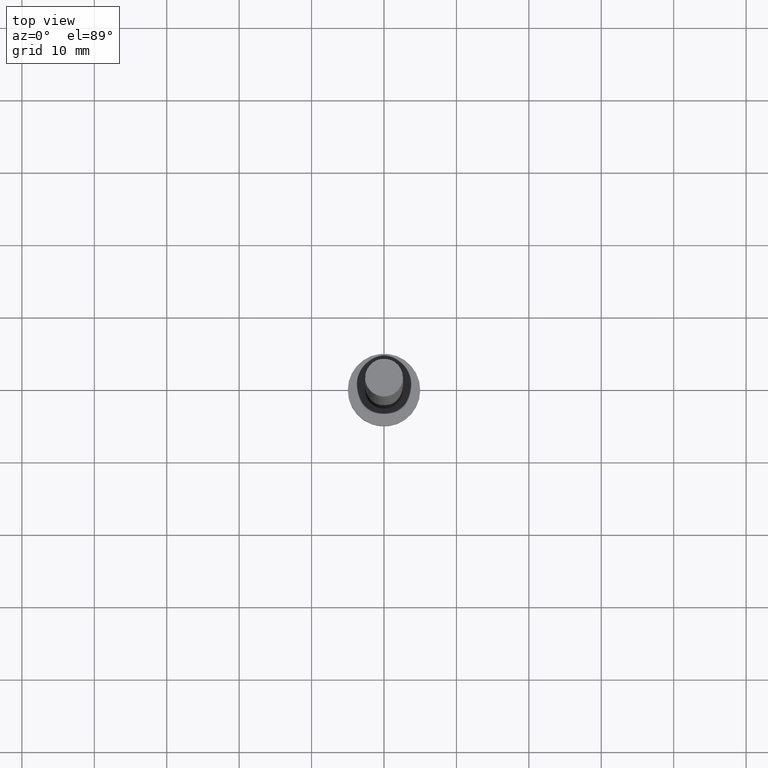
[diagram: clean part render]
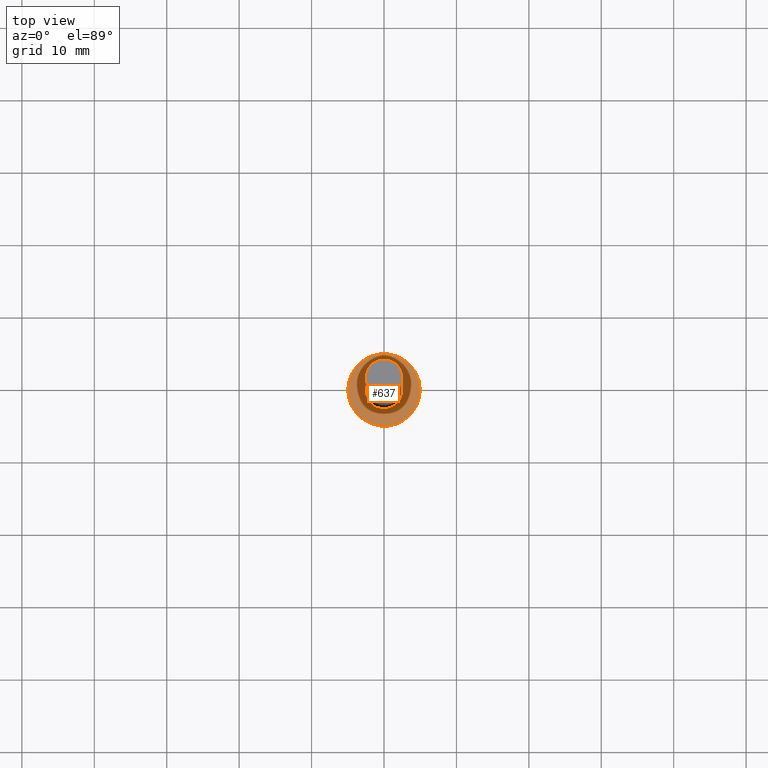
[diagram: same view with one face highlighted and labeled with its STEP entity id]
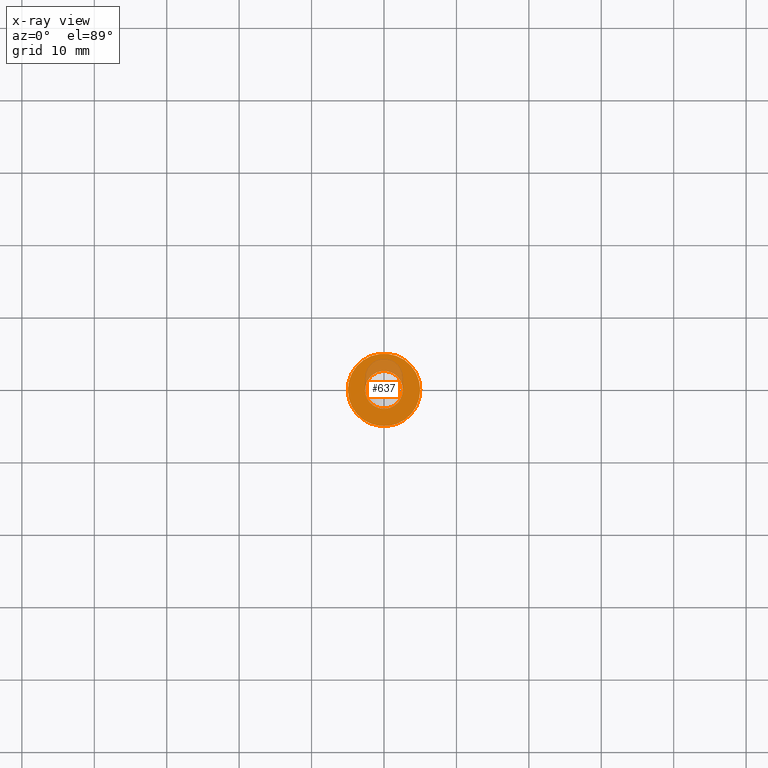
[diagram: x-ray of the same camera — body ghosted, the highlighted face saturated]
A machine part, top view. The second image highlights one B-rep face of the part: STEP entity #637.
The next image is the same camera in x-ray: the body ghosted, the highlighted face saturated — about 16% of this face is hidden behind the body in this view.
In plain terms, the highlighted planar face has unit normal (0, 0, 1).
Its self-contained STEP definition (entity closure, byte-faithful):
#30 = CARTESIAN_POINT ( 'NONE',  ( 0.000000000000000000, 0.000000000000000000, 3.000000000000000000 ) ) ;
#61 = PLANE ( 'NONE',  #112 ) ;
#66 = AXIS2_PLACEMENT_3D ( 'NONE', #30, #1307, #954 ) ;
#95 = EDGE_CURVE ( 'NONE', #689, #372, #369, .T. ) ;
#112 = AXIS2_PLACEMENT_3D ( 'NONE', #1048, #728, #610 ) ;
#148 = EDGE_LOOP ( 'NONE', ( #218, #1246 ) ) ;
#151 = FACE_OUTER_BOUND ( 'NONE', #860, .T. ) ;
#155 = CARTESIAN_POINT ( 'NONE',  ( -2.600000000000000089, 0.000000000000000000, 3.000000000000000000 ) ) ;
#165 = DIRECTION ( 'NONE',  ( 1.000000000000000000, 0.000000000000000000, 0.000000000000000000 ) ) ;
#218 = ORIENTED_EDGE ( 'NONE', *, *, #466, .F. ) ;
#261 = ORIENTED_EDGE ( 'NONE', *, *, #95, .T. ) ;
#270 = AXIS2_PLACEMENT_3D ( 'NONE', #1346, #444, #1091 ) ;
#369 = CIRCLE ( 'NONE', #270, 5.000000000000000000 ) ;
#372 = VERTEX_POINT ( 'NONE', #1334 ) ;
#380 = VERTEX_POINT ( 'NONE', #878 ) ;
#444 = DIRECTION ( 'NONE',  ( 0.000000000000000000, 0.000000000000000000, 1.000000000000000000 ) ) ;
#466 = EDGE_CURVE ( 'NONE', #1185, #380, #1226, .T. ) ;
#577 = EDGE_CURVE ( 'NONE', #380, #1185, #692, .T. ) ;
#583 = AXIS2_PLACEMENT_3D ( 'NONE', #986, #1448, #869 ) ;
#610 = DIRECTION ( 'NONE',  ( 1.000000000000000000, 0.000000000000000000, -0.000000000000000000 ) ) ;
#637 = ADVANCED_FACE ( 'NONE', ( #638, #151 ), #61, .T. ) ;
#638 = FACE_BOUND ( 'NONE', #148, .T. ) ;
#689 = VERTEX_POINT ( 'NONE', #1422 ) ;
#692 = CIRCLE ( 'NONE', #1097, 2.600000000000000089 ) ;
#720 = DIRECTION ( 'NONE',  ( 0.000000000000000000, 0.000000000000000000, 1.000000000000000000 ) ) ;
#728 = DIRECTION ( 'NONE',  ( 0.000000000000000000, 0.000000000000000000, 1.000000000000000000 ) ) ;
#860 = EDGE_LOOP ( 'NONE', ( #261, #1041 ) ) ;
#869 = DIRECTION ( 'NONE',  ( 1.000000000000000000, 0.000000000000000000, 0.000000000000000000 ) ) ;
#875 = EDGE_CURVE ( 'NONE', #372, #689, #1297, .T. ) ;
#878 = CARTESIAN_POINT ( 'NONE',  ( 2.600000000000000089, 3.184081677783117698E-16, 3.000000000000000000 ) ) ;
#954 = DIRECTION ( 'NONE',  ( 1.000000000000000000, 0.000000000000000000, 0.000000000000000000 ) ) ;
#986 = CARTESIAN_POINT ( 'NONE',  ( 0.000000000000000000, 0.000000000000000000, 3.000000000000000000 ) ) ;
#1041 = ORIENTED_EDGE ( 'NONE', *, *, #875, .T. ) ;
#1048 = CARTESIAN_POINT ( 'NONE',  ( 0.000000000000000000, 0.000000000000000000, 3.000000000000000000 ) ) ;
#1091 = DIRECTION ( 'NONE',  ( 1.000000000000000000, 0.000000000000000000, 0.000000000000000000 ) ) ;
#1097 = AXIS2_PLACEMENT_3D ( 'NONE', #1292, #720, #165 ) ;
#1185 = VERTEX_POINT ( 'NONE', #155 ) ;
#1226 = CIRCLE ( 'NONE', #583, 2.600000000000000089 ) ;
#1246 = ORIENTED_EDGE ( 'NONE', *, *, #577, .F. ) ;
#1292 = CARTESIAN_POINT ( 'NONE',  ( 0.000000000000000000, 0.000000000000000000, 3.000000000000000000 ) ) ;
#1297 = CIRCLE ( 'NONE', #66, 5.000000000000000000 ) ;
#1307 = DIRECTION ( 'NONE',  ( 0.000000000000000000, 0.000000000000000000, 1.000000000000000000 ) ) ;
#1334 = CARTESIAN_POINT ( 'NONE',  ( 5.000000000000000000, 6.123233995736766282E-16, 3.000000000000000000 ) ) ;
#1346 = CARTESIAN_POINT ( 'NONE',  ( 0.000000000000000000, 0.000000000000000000, 3.000000000000000000 ) ) ;
#1422 = CARTESIAN_POINT ( 'NONE',  ( -5.000000000000000000, 0.000000000000000000, 3.000000000000000000 ) ) ;
#1448 = DIRECTION ( 'NONE',  ( 0.000000000000000000, 0.000000000000000000, 1.000000000000000000 ) ) ;